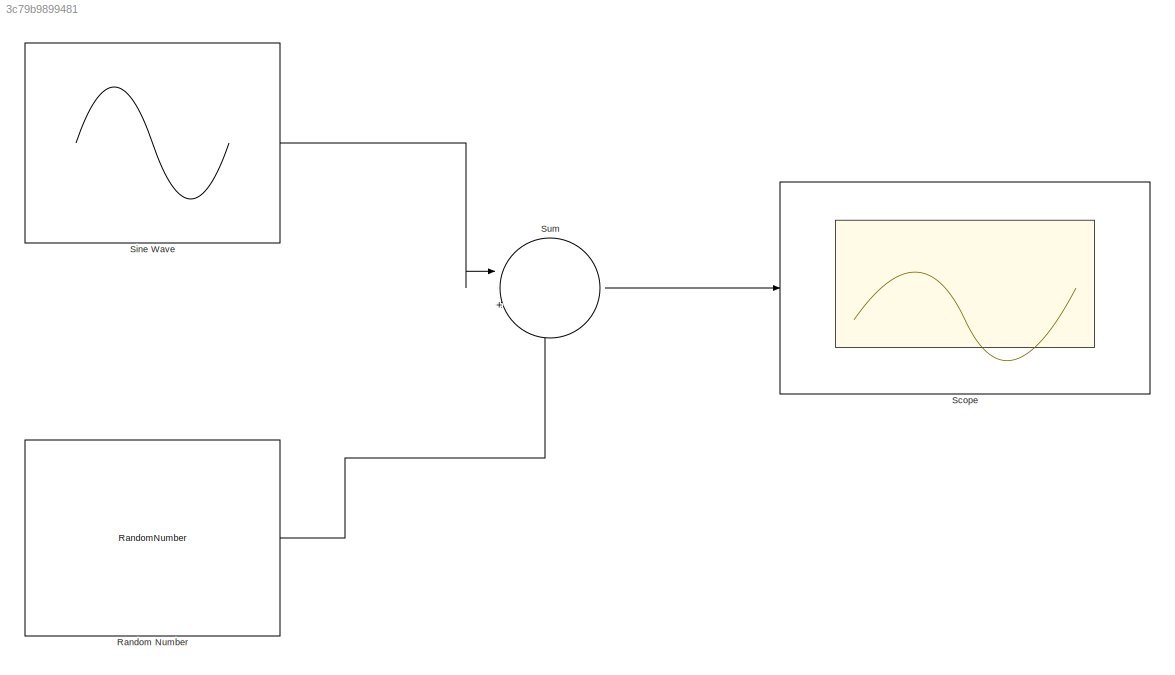
MODEL slx_3c79b9899481
KIND model
CONFIG AbsTol = auto
CONFIG EnableMultiTasking = off
CONFIG FixedStep = auto
CONFIG MaxStep = auto
CONFIG MinStep = auto
CONFIG RelTol = 1e-3
CONFIG SampleTimeConstraint = Unconstrained
CONFIG SolverName = VariableStepAuto
CONFIG StartTime = 0.0
CONFIG StopTime = 10.0
BLOCK [RandomNumber] Random Number
  Mean = 3
  SampleTime = 0.5
  Variance = 0.8
BLOCK [Scope] Scope
  Floating = off
  NumInputPorts = 1
  ScopeSpecificationString = Simulink.scopes.TimeScopeBlockCfg('CurrentConfiguration', extmgr.ConfigurationSet(extmgr.Configuration('Core','General UI',true),extmgr.Configuration('Core','Source UI',true),extmgr.Configuration('Sources','WiredSimulink',true),extmgr.Configuration('Visuals','Time Domain',true,'SerializedDisplays',{struct('MinYLimReal','-1.72399','MaxYLimReal','3.30866','YLabelReal','','MinYLimMag','0.00000','MaxY...<+1443ch>
BLOCK [Sin] Sine Wave
  Amplitude = 2
  SampleTime = 10
BLOCK [Sum] Sum
  Inputs = |++
LINE Random Number:1 -> Sum:2
LINE Sine Wave:1 -> Sum:1
LINE Sum:1 -> Scope:1
